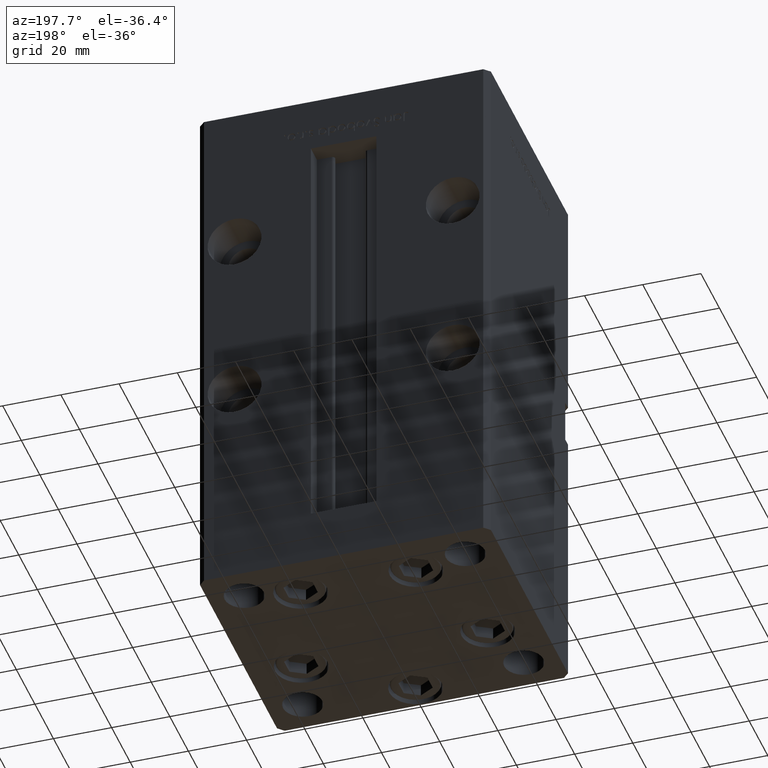
[diagram: clean part render]
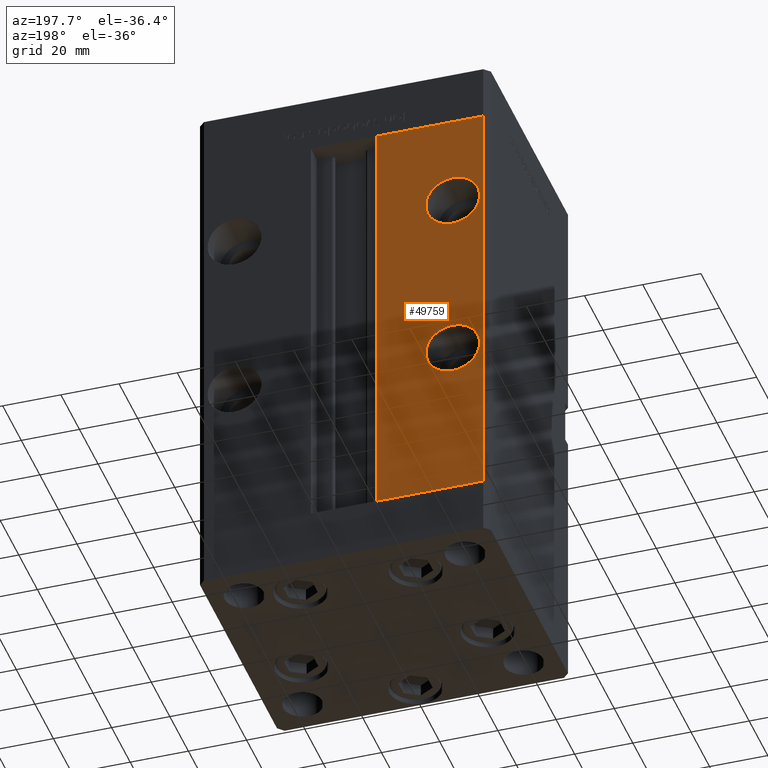
[diagram: same view with one face highlighted and labeled with its STEP entity id]
A machine part, auxiliary view. The second image highlights one B-rep face of the part: STEP entity #49759.
In plain terms, the highlighted planar face has unit normal (0, -1, 0).
Its self-contained STEP definition (entity closure, byte-faithful):
#568 = CARTESIAN_POINT ( 'NONE',  ( -37.50000000000000000, 43.50000000000000000, 56.49999999999998579 ) ) ;
#714 = CARTESIAN_POINT ( 'NONE',  ( -11.24999999999999645, 43.50000000000000000, 0.000000000000000000 ) ) ;
#1092 = ORIENTED_EDGE ( 'NONE', *, *, #26930, .F. ) ;
#2224 = AXIS2_PLACEMENT_3D ( 'NONE', #568, #3527, #4056 ) ;
#2368 = CIRCLE ( 'NONE', #11784, 9.250000000000008882 ) ;
#2536 = DIRECTION ( 'NONE',  ( 0.000000000000000000, 1.000000000000000000, -0.000000000000000000 ) ) ;
#3039 = FACE_OUTER_BOUND ( 'NONE', #7666, .T. ) ;
#3225 = CARTESIAN_POINT ( 'NONE',  ( -11.24999999999999645, 43.50000000000000000, 148.5000000000000000 ) ) ;
#3527 = DIRECTION ( 'NONE',  ( 0.000000000000000000, 1.000000000000000000, 0.000000000000000000 ) ) ;
#3792 = VERTEX_POINT ( 'NONE', #18301 ) ;
#3802 = DIRECTION ( 'NONE',  ( 0.000000000000000000, 1.000000000000000000, -0.000000000000000000 ) ) ;
#4006 = LINE ( 'NONE', #3225, #37190 ) ;
#4056 = DIRECTION ( 'NONE',  ( 0.000000000000000000, 0.000000000000000000, 1.000000000000000000 ) ) ;
#4103 = VERTEX_POINT ( 'NONE', #48072 ) ;
#5797 = AXIS2_PLACEMENT_3D ( 'NONE', #35047, #2536, #14881 ) ;
#6441 = ORIENTED_EDGE ( 'NONE', *, *, #30830, .F. ) ;
#7061 = FACE_BOUND ( 'NONE', #23201, .T. ) ;
#7666 = EDGE_LOOP ( 'NONE', ( #31781, #41685, #29879, #6441 ) ) ;
#9082 = VERTEX_POINT ( 'NONE', #43734 ) ;
#11088 = CARTESIAN_POINT ( 'NONE',  ( -11.24999999999999645, 43.50000000000000000, 148.5000000000000000 ) ) ;
#11723 = AXIS2_PLACEMENT_3D ( 'NONE', #43154, #23243, #51497 ) ;
#11784 = AXIS2_PLACEMENT_3D ( 'NONE', #23678, #3802, #15098 ) ;
#14461 = CARTESIAN_POINT ( 'NONE',  ( -37.50000000000000000, 43.50000000000000000, 125.7500000000000000 ) ) ;
#14881 = DIRECTION ( 'NONE',  ( 0.000000000000000000, 0.000000000000000000, -1.000000000000000000 ) ) ;
#15098 = DIRECTION ( 'NONE',  ( 0.000000000000000000, 0.000000000000000000, -1.000000000000000000 ) ) ;
#15700 = VERTEX_POINT ( 'NONE', #20035 ) ;
#16570 = EDGE_CURVE ( 'NONE', #4103, #43118, #37512, .T. ) ;
#16823 = CIRCLE ( 'NONE', #2224, 9.250000000000001776 ) ;
#18301 = CARTESIAN_POINT ( 'NONE',  ( -37.50000000000000000, 43.50000000000000000, 65.74999999999998579 ) ) ;
#20035 = CARTESIAN_POINT ( 'NONE',  ( -11.24999999999999645, 43.50000000000000000, 148.5000000000000000 ) ) ;
#20203 = DIRECTION ( 'NONE',  ( 0.000000000000000000, -0.000000000000000000, -1.000000000000000000 ) ) ;
#22435 = CARTESIAN_POINT ( 'NONE',  ( -37.50000000000000000, 43.50000000000000000, 47.24999999999998579 ) ) ;
#23201 = EDGE_LOOP ( 'NONE', ( #36767, #53004 ) ) ;
#23243 = DIRECTION ( 'NONE',  ( 0.000000000000000000, 1.000000000000000000, 0.000000000000000000 ) ) ;
#23678 = CARTESIAN_POINT ( 'NONE',  ( -37.50000000000000000, 43.50000000000000000, 116.4999999999999858 ) ) ;
#26251 = LINE ( 'NONE', #34313, #36442 ) ;
#26461 = EDGE_LOOP ( 'NONE', ( #1092, #47739 ) ) ;
#26930 = EDGE_CURVE ( 'NONE', #3792, #43305, #50386, .T. ) ;
#28981 = AXIS2_PLACEMENT_3D ( 'NONE', #11088, #40369, #20203 ) ;
#29015 = VERTEX_POINT ( 'NONE', #33224 ) ;
#29879 = ORIENTED_EDGE ( 'NONE', *, *, #16570, .T. ) ;
#29888 = LINE ( 'NONE', #41702, #47765 ) ;
#30830 = EDGE_CURVE ( 'NONE', #29015, #43118, #29888, .T. ) ;
#31781 = ORIENTED_EDGE ( 'NONE', *, *, #33357, .T. ) ;
#33224 = CARTESIAN_POINT ( 'NONE',  ( -48.00000000000000711, 43.50000000000000000, 148.5000000000000000 ) ) ;
#33357 = EDGE_CURVE ( 'NONE', #29015, #15700, #4006, .T. ) ;
#33878 = CARTESIAN_POINT ( 'NONE',  ( -48.00000000000000711, 43.50000000000000000, 0.000000000000000000 ) ) ;
#34313 = CARTESIAN_POINT ( 'NONE',  ( -11.24999999999999645, 43.50000000000000000, 0.000000000000000000 ) ) ;
#35047 = CARTESIAN_POINT ( 'NONE',  ( -37.50000000000000000, 43.50000000000000000, 116.4999999999999858 ) ) ;
#35808 = FACE_BOUND ( 'NONE', #26461, .T. ) ;
#36442 = VECTOR ( 'NONE', #41842, 1000.000000000000000 ) ;
#36767 = ORIENTED_EDGE ( 'NONE', *, *, #43854, .F. ) ;
#37190 = VECTOR ( 'NONE', #48630, 1000.000000000000000 ) ;
#37512 = LINE ( 'NONE', #714, #41465 ) ;
#37705 = EDGE_CURVE ( 'NONE', #4103, #15700, #26251, .T. ) ;
#40238 = EDGE_CURVE ( 'NONE', #43305, #3792, #16823, .T. ) ;
#40369 = DIRECTION ( 'NONE',  ( 0.000000000000000000, -1.000000000000000000, 0.000000000000000000 ) ) ;
#41465 = VECTOR ( 'NONE', #45315, 1000.000000000000000 ) ;
#41685 = ORIENTED_EDGE ( 'NONE', *, *, #37705, .F. ) ;
#41702 = CARTESIAN_POINT ( 'NONE',  ( -48.00000000000000711, 43.50000000000000000, 148.5000000000000000 ) ) ;
#41842 = DIRECTION ( 'NONE',  ( -0.000000000000000000, -0.000000000000000000, 1.000000000000000000 ) ) ;
#43118 = VERTEX_POINT ( 'NONE', #33878 ) ;
#43154 = CARTESIAN_POINT ( 'NONE',  ( -37.50000000000000000, 43.50000000000000000, 56.49999999999998579 ) ) ;
#43305 = VERTEX_POINT ( 'NONE', #22435 ) ;
#43734 = CARTESIAN_POINT ( 'NONE',  ( -37.50000000000000000, 43.50000000000000000, 107.2499999999999858 ) ) ;
#43854 = EDGE_CURVE ( 'NONE', #49454, #9082, #2368, .T. ) ;
#44598 = EDGE_CURVE ( 'NONE', #9082, #49454, #52129, .T. ) ;
#45315 = DIRECTION ( 'NONE',  ( -1.000000000000000000, 0.000000000000000000, 0.000000000000000000 ) ) ;
#47739 = ORIENTED_EDGE ( 'NONE', *, *, #40238, .F. ) ;
#47765 = VECTOR ( 'NONE', #49790, 1000.000000000000000 ) ;
#48072 = CARTESIAN_POINT ( 'NONE',  ( -11.24999999999999645, 43.50000000000000000, 0.000000000000000000 ) ) ;
#48630 = DIRECTION ( 'NONE',  ( 1.000000000000000000, 0.000000000000000000, 0.000000000000000000 ) ) ;
#49454 = VERTEX_POINT ( 'NONE', #14461 ) ;
#49759 = ADVANCED_FACE ( 'NONE', ( #7061, #35808, #3039 ), #52746, .F. ) ;
#49790 = DIRECTION ( 'NONE',  ( -0.000000000000000000, -0.000000000000000000, -1.000000000000000000 ) ) ;
#50386 = CIRCLE ( 'NONE', #11723, 9.250000000000001776 ) ;
#51497 = DIRECTION ( 'NONE',  ( 0.000000000000000000, 0.000000000000000000, 1.000000000000000000 ) ) ;
#52129 = CIRCLE ( 'NONE', #5797, 9.250000000000008882 ) ;
#52746 = PLANE ( 'NONE',  #28981 ) ;
#53004 = ORIENTED_EDGE ( 'NONE', *, *, #44598, .F. ) ;